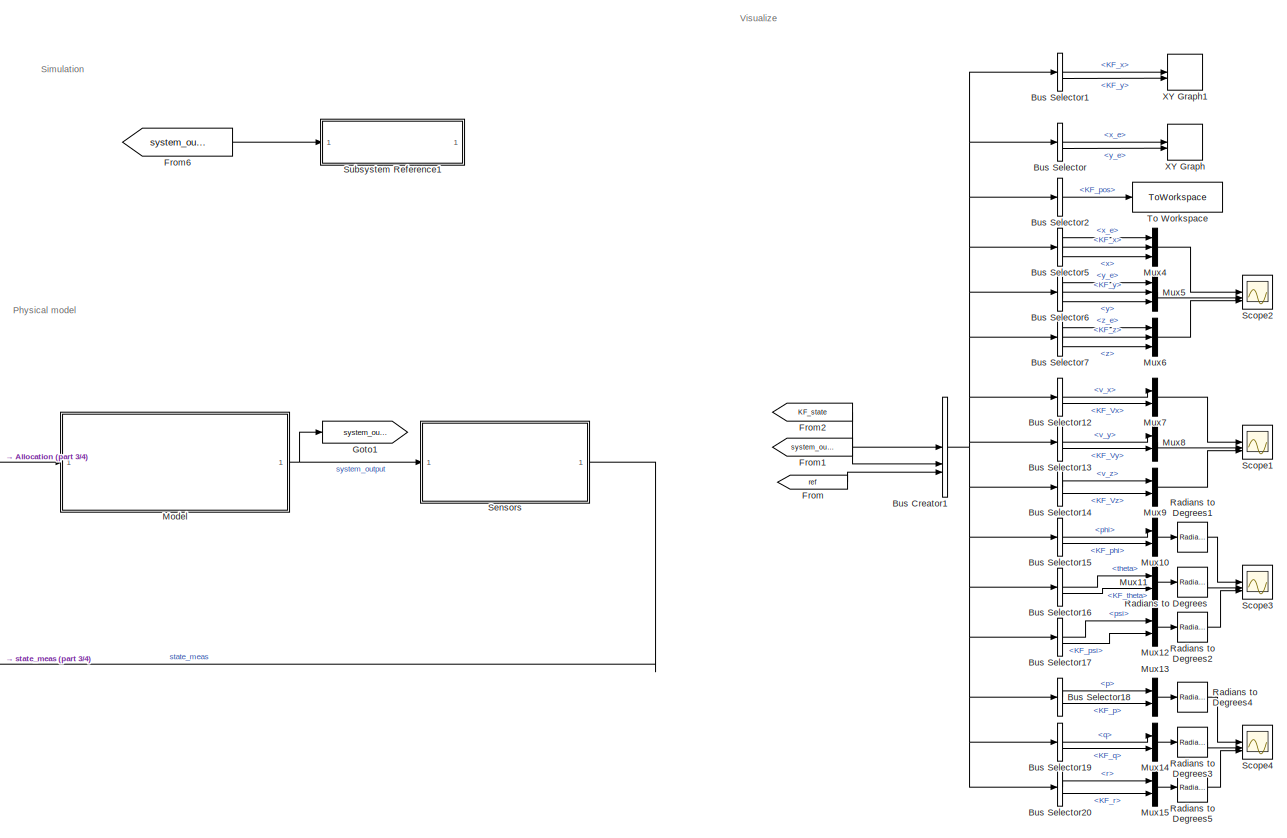
[diagram: root canvas - part 1/4, right side, full height]
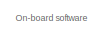
[diagram: root canvas - part 2/4, middle left region]
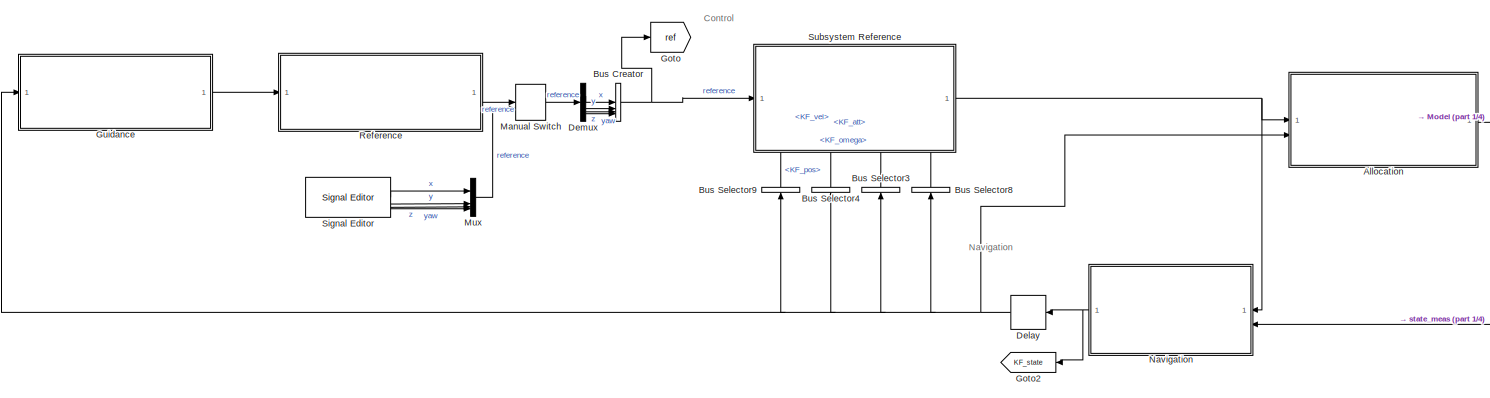
[diagram: root canvas - part 3/4, middle left region]
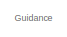
[diagram: root canvas - part 4/4, middle left region]
MODEL slx_0f311c0d2198
KIND model
CONFIG AbsTol = auto
CONFIG EnableMultiTasking = off
CONFIG FixedStep = 0.001
CONFIG MaxStep = auto
CONFIG MinStep = auto
CONFIG RelTol = 1e-3
CONFIG SampleTimeConstraint = Unconstrained
CONFIG SolverName = ode4
CONFIG StartTime = 0.0
CONFIG StopTime = 40
BLOCK [SubSystem] Allocation
  ReferencedSubsystem = control_allocation
BLOCK [BusCreator] Bus Creator
  DisplayOption = bar
  InheritFromInputs = on
  Inputs = 4
BLOCK [BusCreator] Bus Creator1
  DisplayOption = bar
  InheritFromInputs = on
  Inputs = 3
BLOCK [BusSelector] Bus Selector
  OutputSignals = system_output.pos.x_e,system_output.pos.y_e
BLOCK [BusSelector] Bus Selector1
  OutputSignals = state.KF_pos.KF_x,state.KF_pos.KF_y
BLOCK [BusSelector] Bus Selector12
  OutputSignals = system_output.V_e.v_x,state.KF_vel.KF_Vx
BLOCK [BusSelector] Bus Selector13
  OutputSignals = system_output.V_e.v_y,state.KF_vel.KF_Vy
BLOCK [BusSelector] Bus Selector14
  OutputSignals = system_output.V_e.v_z,state.KF_vel.KF_Vz
BLOCK [BusSelector] Bus Selector15
  OutputSignals = system_output.Att.phi,state.KF_att.KF_phi
BLOCK [BusSelector] Bus Selector16
  OutputSignals = system_output.Att.theta,state.KF_att.KF_theta
BLOCK [BusSelector] Bus Selector17
  OutputSignals = system_output.Att.psi,state.KF_att.KF_psi
BLOCK [BusSelector] Bus Selector18
  OutputSignals = system_output.ang_vel.p,state.KF_omega.KF_p
BLOCK [BusSelector] Bus Selector19
  OutputSignals = system_output.ang_vel.q,state.KF_omega.KF_q
BLOCK [BusSelector] Bus Selector2
  OutputSignals = state.KF_pos
BLOCK [BusSelector] Bus Selector20
  OutputSignals = system_output.ang_vel.r,state.KF_omega.KF_r
BLOCK [BusSelector] Bus Selector3
  NameLocation = right
  OutputSignals = KF_att
BLOCK [BusSelector] Bus Selector4
  NameLocation = right
  OutputSignals = KF_vel
BLOCK [BusSelector] Bus Selector5
  OutputSignals = system_output.pos.x_e,state.KF_pos.KF_x,reference.x
BLOCK [BusSelector] Bus Selector6
  OutputSignals = system_output.pos.y_e,state.KF_pos.KF_y,reference.y
BLOCK [BusSelector] Bus Selector7
  OutputSignals = system_output.pos.z_e,state.KF_pos.KF_z,reference.z
BLOCK [BusSelector] Bus Selector8
  NameLocation = right
  OutputSignals = KF_omega
BLOCK [BusSelector] Bus Selector9
  NameLocation = right
  OutputSignals = KF_pos
BLOCK [Delay] Delay
  DelayLength = 1
  InputPortMap = u0
BLOCK [Demux] Demux
BLOCK [From] From
  GotoTag = ref
BLOCK [From] From1
  GotoTag = system_output
BLOCK [From] From2
  GotoTag = KF_state
BLOCK [From] From6
  GotoTag = system_output
BLOCK [Goto] Goto
  GotoTag = ref
BLOCK [Goto] Goto1
  GotoTag = system_output
BLOCK [Goto] Goto2
  GotoTag = KF_state
BLOCK [SubSystem] Guidance
  ReferencedSubsystem = Guidance
BLOCK [ManualSwitch] Manual Switch
BLOCK [SubSystem] Model
  ReferencedSubsystem = drone_model
BLOCK [Mux] Mux
  DisplayOption = bar
BLOCK [Mux] Mux10
  DisplayOption = bar
  Inputs = 2
BLOCK [Mux] Mux11
  DisplayOption = bar
  Inputs = 2
BLOCK [Mux] Mux12
  DisplayOption = bar
  Inputs = 2
BLOCK [Mux] Mux13
  DisplayOption = bar
  Inputs = 2
BLOCK [Mux] Mux14
  DisplayOption = bar
  Inputs = 2
BLOCK [Mux] Mux15
  DisplayOption = bar
  Inputs = 2
BLOCK [Mux] Mux4
  DisplayOption = bar
  Inputs = 3
BLOCK [Mux] Mux5
  DisplayOption = bar
  Inputs = 3
BLOCK [Mux] Mux6
  DisplayOption = bar
  Inputs = 3
BLOCK [Mux] Mux7
  DisplayOption = bar
  Inputs = 2
BLOCK [Mux] Mux8
  DisplayOption = bar
  Inputs = 2
BLOCK [Mux] Mux9
  DisplayOption = bar
  Inputs = 2
BLOCK [SubSystem] Navigation
  Description = Navigation module used to estimated the system's state
  ReferencedSubsystem = drone_navigation
  SystemSampleTime = 0.001
  TreatAsAtomicUnit = on
BLOCK [Reference] Radians to Degrees  REF=simulink_extras/Transformations/Radians
to Degrees
  SourceBlock = simulink_extras/Transformations/Radians\nto Degrees
  SourceType = RadiansToDegrees
BLOCK [Reference] Radians to Degrees1  REF=simulink_extras/Transformations/Radians
to Degrees
  SourceBlock = simulink_extras/Transformations/Radians\nto Degrees
  SourceType = RadiansToDegrees
BLOCK [Reference] Radians to Degrees2  REF=simulink_extras/Transformations/Radians
to Degrees
  SourceBlock = simulink_extras/Transformations/Radians\nto Degrees
  SourceType = RadiansToDegrees
BLOCK [Reference] Radians to Degrees3  REF=simulink_extras/Transformations/Radians
to Degrees
  SourceBlock = simulink_extras/Transformations/Radians\nto Degrees
  SourceType = RadiansToDegrees
BLOCK [Reference] Radians to Degrees4  REF=simulink_extras/Transformations/Radians
to Degrees
  SourceBlock = simulink_extras/Transformations/Radians\nto Degrees
  SourceType = RadiansToDegrees
BLOCK [Reference] Radians to Degrees5  REF=simulink_extras/Transformations/Radians
to Degrees
  SourceBlock = simulink_extras/Transformations/Radians\nto Degrees
  SourceType = RadiansToDegrees
BLOCK [SubSystem] Reference
  ReferencedSubsystem = Reference
BLOCK [Scope] Scope1
  Floating = off
  NumInputPorts = 3
  ScopeSpecificationString = Simulink.scopes.TimeScopeBlockCfg('CurrentConfiguration', extmgr.ConfigurationSet(extmgr.Configuration('Core','General UI',true),extmgr.Configuration('Core','Source UI',true),extmgr.Configuration('Sources','WiredSimulink',true,'DataLoggingVariableName','ScopeData5'),extmgr.Configuration('Visuals','Time Domain',true,'SerializedDisplays',{struct('MinYLimReal','-2.64315','MaxYLimReal','8.15505','YLab...<+2815ch>
BLOCK [Scope] Scope2
  Floating = off
  NumInputPorts = 3
  ScopeSpecificationString = Simulink.scopes.TimeScopeBlockCfg('CurrentConfiguration', extmgr.ConfigurationSet(extmgr.Configuration('Core','General UI',true),extmgr.Configuration('Core','Source UI',true),extmgr.Configuration('Sources','WiredSimulink',true,'DataLoggingVariableName','ScopeData2'),extmgr.Configuration('Visuals','Time Domain',true,'SerializedDisplays',{struct('MinYLimReal','-13.11321','MaxYLimReal','112.81442','Y...<+2873ch>
BLOCK [Scope] Scope3
  Floating = off
  NumInputPorts = 3
  ScopeSpecificationString = Simulink.scopes.TimeScopeBlockCfg('CurrentConfiguration', extmgr.ConfigurationSet(extmgr.Configuration('Core','General UI',true),extmgr.Configuration('Core','Source UI',true),extmgr.Configuration('Sources','WiredSimulink',true,'DataLoggingVariableName','ScopeData6'),extmgr.Configuration('Visuals','Time Domain',true,'SerializedDisplays',{struct('MinYLimReal','-34.68116','MaxYLimReal','113.93672','Y...<+2951ch>
BLOCK [Scope] Scope4
  Floating = off
  NumInputPorts = 3
  ScopeSpecificationString = Simulink.scopes.TimeScopeBlockCfg('CurrentConfiguration', extmgr.ConfigurationSet(extmgr.Configuration('Core','General UI',true),extmgr.Configuration('Core','Source UI',true),extmgr.Configuration('Sources','WiredSimulink',true,'DataLoggingVariableName','ScopeData7'),extmgr.Configuration('Visuals','Time Domain',true,'SerializedDisplays',{struct('MinYLimReal','-59.60544','MaxYLimReal','107.16805','Y...<+2955ch>
BLOCK [SubSystem] Sensors
  ReferencedSubsystem = sensor_model
BLOCK [Reference] Signal Editor  REF=SignalEditorBlockLib/Signal Editor
  LibrarySourceBlock = simulink/Sources/Signal Editor
  SourceBlock = SignalEditorBlockLib/Signal Editor
  SourceType = SignalEditor
  UserDataPersistent = on
BLOCK [SubSystem] Subsystem Reference
  PortSchema = {"entries":[{"content":{"sides":[{"content":{"connectorIds":["In1"]},"type":"ConnectorPlacement.EquallySpacedRectSide","uuid":"2cee2df0-3d3a-4a29-b454-23d9d03f458c"},{"content":{"connectorIds":["Out1"],"side":"RIGHT"},"type":"ConnectorPlacement.EquallySpacedRectSide","uuid":"5651b2ae-0e6e-4567-8068-a5e5b799f50c"},{"content":{"side":"TOP"},"type":"ConnectorPlacement.EquallySpacedRectSide","uuid":"e...<+389ch>
  ReferencedSubsystem = control_law
BLOCK [SubSystem] Subsystem Reference1
  ReferencedSubsystem = Simulation
BLOCK [ToWorkspace] To Workspace
  FixptAsFi = on
  MaxDataPoints = inf
  SampleTime = param.dt
  SaveFormat = Timeseries
  VariableName = position
BLOCK [Record] XY Graph
  CompatibilityTag = XY
  FileSettingsInternal = {"entries":[{"content":{"excelSettings":{"content":{},"type":"Streamout.ExcelSettings"}},"type":"Streamout.FileSettingStorage","uuid":""}],"packageUris":["http:\/\/schema.mathworks.com\/mf0\/streamout_blocks\/R2020a"],"version":"1.0"}
  Layout = [1 1]
  SignalsInternal = {"entries":[{"content":{"signals":[{"content":{"blockPath":[],"dimensions":[1],"domain":"","lineColor":"#7e2f8e","port":1,"sid":[""],"signalID":12610,"signalName":"<x_e>"},"type":"RecordBlkView.Signal","uuid":""},{"content":{"blockPath":[],"dimensions":[1],"domain":"","lineColor":"#77ac30","port":2,"sid":[""],"signalID":12614,"signalName":"<y_e>"},"type":"RecordBlkView.Signal","uuid":""}]},"type":...<+136ch>
  VisualizationBindings = {"xyplotplugin":{"info":[{"series":[],"subplotID":1}]}}
BLOCK [Record] XY Graph1
  CompatibilityTag = XY
  FileSettingsInternal = {"entries":[{"content":{"excelSettings":{"content":{},"type":"Streamout.ExcelSettings"}},"type":"Streamout.FileSettingStorage","uuid":""}],"packageUris":["http:\/\/schema.mathworks.com\/mf0\/streamout_blocks\/R2020a"],"version":"1.0"}
  Layout = [1 1]
  SignalsInternal = {"entries":[{"content":{"signals":[{"content":{"blockPath":[],"dimensions":[1],"domain":"","lineColor":"#4dbeee","port":1,"sid":[""],"signalID":12618,"signalName":"<KF_x>"},"type":"RecordBlkView.Signal","uuid":""},{"content":{"blockPath":[],"dimensions":[1],"domain":"","lineColor":"#a2142f","port":2,"sid":[""],"signalID":12622,"signalName":"<KF_y>"},"type":"RecordBlkView.Signal","uuid":""}]},"type...<+138ch>
  VisualizationBindings = {"xyplotplugin":{"info":[{"series":[],"subplotID":1}]}}
ANNOTATION (root): Control
ANNOTATION (root): Guidance
ANNOTATION (root): Navigation
ANNOTATION (root): On-board software
ANNOTATION (root): Physical model
ANNOTATION (root): Simulation
ANNOTATION (root): Visualize
LINE Allocation:1 -> Model:1
NET Bus Creator1:1 -> Bus Selector12:1, Bus Selector13:1, Bus Selector14:1, Bus Selector15:1, Bus Selector16:1, Bus Selector17:1, Bus Selector18:1, Bus Selector19:1, Bus Selector1:1, Bus Selector20:1, Bus Selector2:1, Bus Selector5:1, Bus Selector6:1, Bus Selector7:1, Bus Selector:1
NET Bus Creator:1 -> Goto:1, Subsystem Reference:1
LINE Bus Selector12:1 -> Mux7:1
LINE Bus Selector12:2 -> Mux7:2
LINE Bus Selector13:1 -> Mux8:1
LINE Bus Selector13:2 -> Mux8:2
LINE Bus Selector14:1 -> Mux9:1
LINE Bus Selector14:2 -> Mux9:2
LINE Bus Selector15:1 -> Mux10:1
LINE Bus Selector15:2 -> Mux10:2
LINE Bus Selector16:1 -> Mux11:1
LINE Bus Selector16:2 -> Mux11:2
LINE Bus Selector17:1 -> Mux12:1
LINE Bus Selector17:2 -> Mux12:2
LINE Bus Selector18:1 -> Mux13:1
LINE Bus Selector18:2 -> Mux13:2
LINE Bus Selector19:1 -> Mux14:1
LINE Bus Selector19:2 -> Mux14:2
LINE Bus Selector1:1 -> XY Graph1:1
LINE Bus Selector1:2 -> XY Graph1:2
LINE Bus Selector20:1 -> Mux15:1
LINE Bus Selector20:2 -> Mux15:2
LINE Bus Selector2:1 -> To Workspace:1
LINE Bus Selector3:1 -> Subsystem Reference:4
LINE Bus Selector4:1 -> Subsystem Reference:3
LINE Bus Selector5:1 -> Mux4:1
LINE Bus Selector5:2 -> Mux4:2
LINE Bus Selector5:3 -> Mux4:3
LINE Bus Selector6:1 -> Mux5:1
LINE Bus Selector6:2 -> Mux5:2
LINE Bus Selector6:3 -> Mux5:3
LINE Bus Selector7:1 -> Mux6:1
LINE Bus Selector7:2 -> Mux6:2
LINE Bus Selector7:3 -> Mux6:3
LINE Bus Selector8:1 -> Subsystem Reference:5
LINE Bus Selector9:1 -> Subsystem Reference:2
LINE Bus Selector:1 -> XY Graph:1
LINE Bus Selector:2 -> XY Graph:2
NET Delay:1 -> Allocation:2, Bus Selector3:1, Bus Selector4:1, Bus Selector8:1, Bus Selector9:1, Guidance:1
LINE Demux:1 -> Bus Creator:1
LINE Demux:2 -> Bus Creator:2
LINE Demux:3 -> Bus Creator:3
LINE Demux:4 -> Bus Creator:4
LINE From1:1 -> Bus Creator1:2
LINE From2:1 -> Bus Creator1:1
LINE From6:1 -> Subsystem Reference1:1
LINE From:1 -> Bus Creator1:3
LINE Guidance:1 -> Reference:1
LINE Manual Switch:1 -> Demux:1
NET Model:1 -> Goto1:1, Sensors:1
LINE Mux10:1 -> Radians to Degrees1:1
LINE Mux11:1 -> Radians to Degrees:1
LINE Mux12:1 -> Radians to Degrees2:1
LINE Mux13:1 -> Radians to Degrees4:1
LINE Mux14:1 -> Radians to Degrees3:1
LINE Mux15:1 -> Radians to Degrees5:1
LINE Mux4:1 -> Scope2:1
LINE Mux5:1 -> Scope2:2
LINE Mux6:1 -> Scope2:3
LINE Mux7:1 -> Scope1:1
LINE Mux8:1 -> Scope1:2
LINE Mux9:1 -> Scope1:3
LINE Mux:1 -> Manual Switch:2
NET Navigation:1 -> Delay:1, Goto2:1
LINE Radians to Degrees1:1 -> Scope3:1
LINE Radians to Degrees2:1 -> Scope3:3
LINE Radians to Degrees3:1 -> Scope4:2
LINE Radians to Degrees4:1 -> Scope4:1
LINE Radians to Degrees5:1 -> Scope4:3
LINE Radians to Degrees:1 -> Scope3:2
LINE Reference:1 -> Manual Switch:1
LINE Sensors:1 -> Navigation:2
LINE Signal Editor:1 -> Mux:1
LINE Signal Editor:2 -> Mux:2
LINE Signal Editor:3 -> Mux:3
LINE Signal Editor:4 -> Mux:4
NET Subsystem Reference:1 -> Allocation:1, Navigation:1
note: NET lines group one-source signal fan-out (src -> all destinations, sorted); 1:1 wires keep LINE
